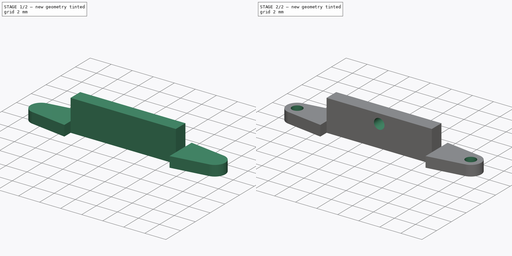
[diagram: build sequence overview — one tinted view per stage of 2, left to right]
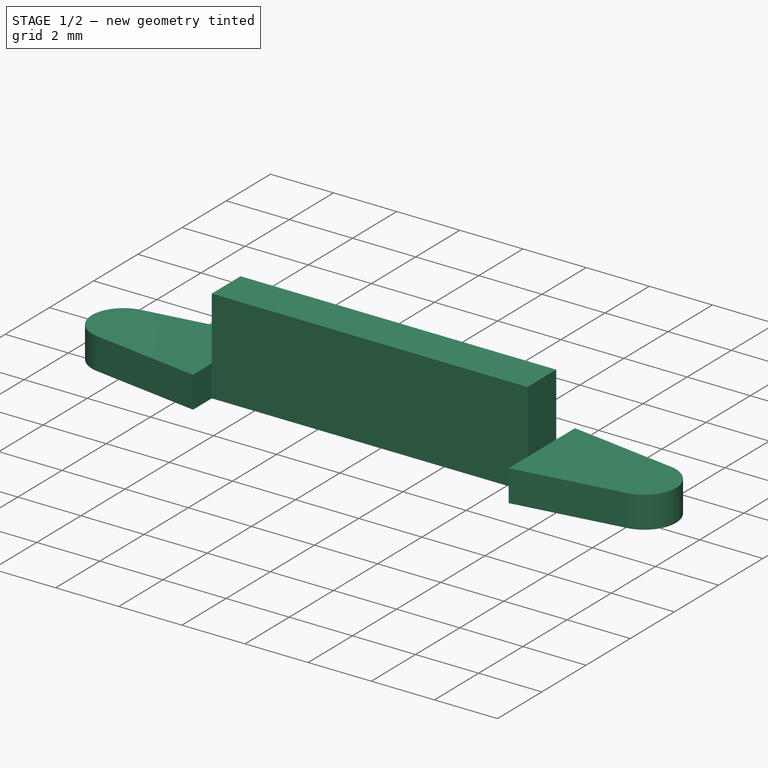
[diagram: stage 1 of 2 — iso view after this stage's code; geometry added in this stage tinted green]
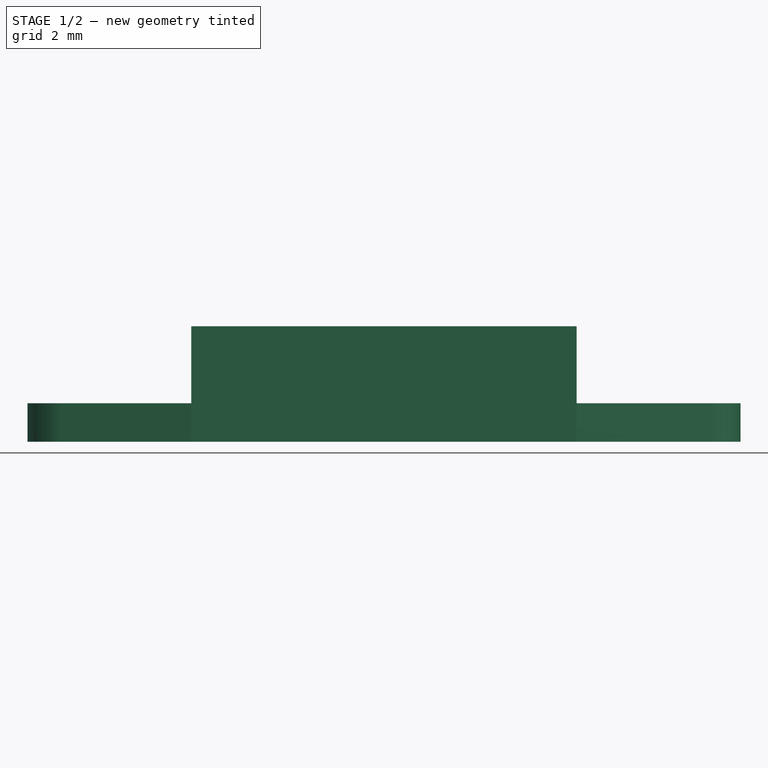
[diagram: stage 1 of 2 — front view after this stage's code; geometry added in this stage tinted green]
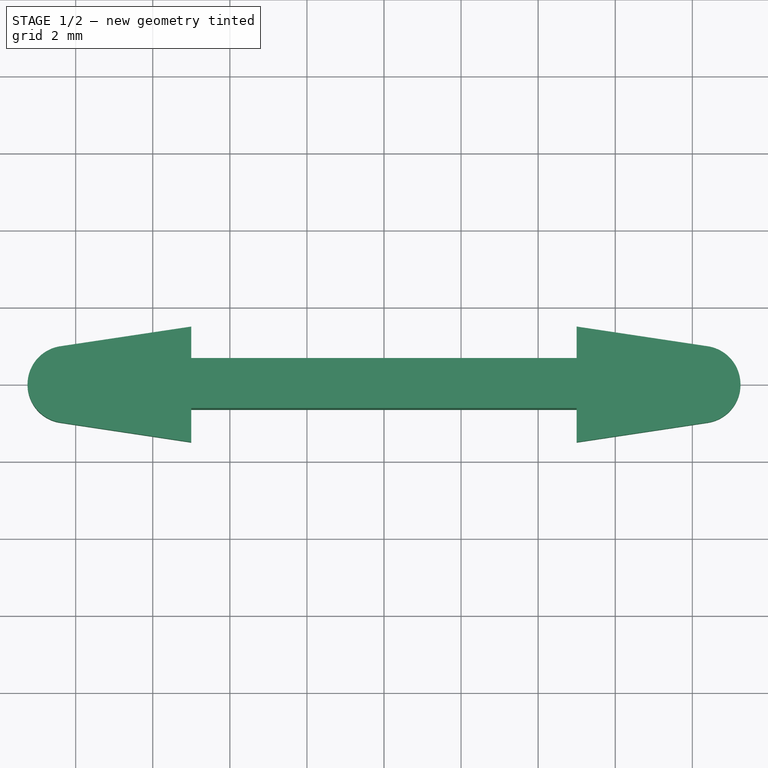
[diagram: stage 1 of 2 — top view after this stage's code; geometry added in this stage tinted green]
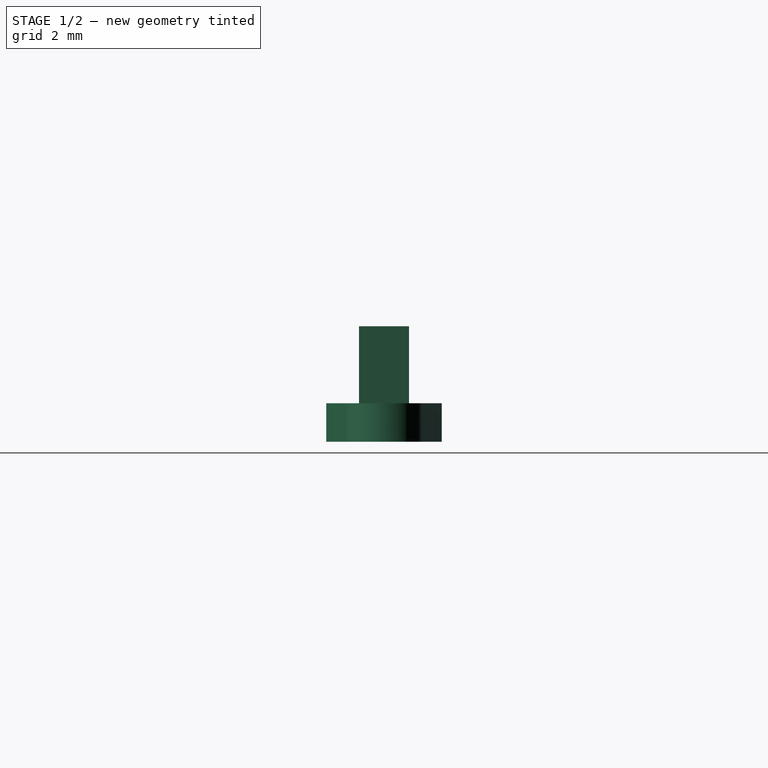
[diagram: stage 1 of 2 — right view after this stage's code; geometry added in this stage tinted green]
FCSTD DOCUMENT  (FreeCAD 0.16R6264 (Git))
Label: Dir_C
License: All rights reserved
LicenseURL: http://en.wikipedia.org/wiki/All_rights_reserved
objects: Sketcher::SketchObject×4, PartDesign::Pad×2, PartDesign::Pocket×2
note: 12 computed .brp shape members not serialized (recipe doc carries the construction recipe); baked Part::Feature solids carry a one-line shape summary decoded from their .brp

FEATURE [Sketcher::SketchObject] Sketch
  sketch-geometry (12):
    g0: ArcOfCircle CenterX=-8.25 CenterY=0 CenterZ=0 NormalX=0 NormalY=0 NormalZ=1 Radius=1 StartAngle=1.72006 EndAngle=4.56312
    g1: ArcOfCircle CenterX=8.25 CenterY=0 CenterZ=0 NormalX=0 NormalY=0 NormalZ=1 Radius=1 StartAngle=4.86166 EndAngle=7.70471
    g2: LineSegment StartX=-8.39871 StartY=0.98888 StartZ=0 EndX=-5 EndY=1.5 EndZ=0
    g3: LineSegment StartX=-5 StartY=1.5 StartZ=0 EndX=-5 EndY=0.65 EndZ=0
    g4: LineSegment StartX=-5 StartY=0.65 StartZ=0 EndX=5 EndY=0.65 EndZ=0
    g5: LineSegment StartX=5 StartY=0.65 StartZ=0 EndX=5 EndY=1.5 EndZ=0
    g6: LineSegment StartX=5 StartY=1.5 StartZ=0 EndX=8.39871 EndY=0.98888 EndZ=0
    g7: LineSegment StartX=-8.39871 StartY=-0.98888 StartZ=0 EndX=-5 EndY=-1.5 EndZ=0
    g8: LineSegment StartX=-5 StartY=-1.5 StartZ=0 EndX=-5 EndY=-0.65 EndZ=0
    g9: LineSegment StartX=-5 StartY=-0.65 StartZ=0 EndX=5 EndY=-0.65 EndZ=0
    g10: LineSegment StartX=5 StartY=-0.65 StartZ=0 EndX=5 EndY=-1.5 EndZ=0
    g11: LineSegment StartX=5 StartY=-1.5 StartZ=0 EndX=8.39871 EndY=-0.98888 EndZ=0
  constraints (36):
    c: PointOnObject(g1,g-1)
    c: PointOnObject(g0,g-1)
    c: Coincident(g2,g3)
    c: Vertical(g3)
    c: Coincident(g3,g4)
    c: Horizontal(g4)
    c: Coincident(g4,g5)
    c: Vertical(g5)
    c: Coincident(g5,g6)
    c: Coincident(g7,g8)
    c: Vertical(g8)
    c: Coincident(g8,g9)
    c: Horizontal(g9)
    c: Coincident(g9,g10)
    c: Vertical(g10)
    c: Coincident(g10,g11)
    c: Tangent(g1,g11) = -1.5708
    c: Tangent(g1,g6) = 1.5708
    c: Tangent(g0,g2) = 1.5708
    c: Tangent(g0,g7) = -1.5708
    c: Radius(g0) = 1
    c: Equal(g1,g0)
    c: DistanceX(g2,g5) = 10
    c: Equal(g9,g4)
    c: DistanceY(g4,g9) = -1.3
    c: DistanceY(g4) = 0.65
    c: Equal(g5,g3)
    c: Equal(g3,g8)
    c: Equal(g8,g10)
    c: DistanceY(g5) = 1.5
    c: DistanceX(g1,g0) = -16.5
    c: DistanceX(g1) = 8.25
    c: Equal(g11,g6)
    c: Equal(g2,g7)
    c: Equal(g7,g11)
    c: Equal(g11,g6)
FEATURE [PartDesign::Pad] Pad
  Length = 1
  Length2 = 100
  Sketch = -> Sketch
  Type = 0
FEATURE [Sketcher::SketchObject] Sketch001
  Placement = pos=(0,0,1) rot=(0,0,1;0rad)
  Support = -> Pad [Face14]
  sketch-geometry (4):
    g0: LineSegment StartX=-5 StartY=0.65 StartZ=0 EndX=5 EndY=0.65 EndZ=0
    g1: LineSegment StartX=5 StartY=0.65 StartZ=0 EndX=5 EndY=-0.65 EndZ=0
    g2: LineSegment StartX=5 StartY=-0.65 StartZ=0 EndX=-5 EndY=-0.65 EndZ=0
    g3: LineSegment StartX=-5 StartY=-0.65 StartZ=0 EndX=-5 EndY=0.65 EndZ=0
  constraints (12):
    c: Coincident(g0,g1)
    c: Coincident(g1,g2)
    c: Coincident(g2,g3)
    c: Coincident(g3,g0)
    c: Horizontal(g0)
    c: Horizontal(g2)
    c: Vertical(g1)
    c: Vertical(g3)
    c: DistanceY(g1) = -1.3
    c: DistanceY(g0) = 0.65
    c: DistanceX(g0) = 10
    c: DistanceX(g0) = 5
FEATURE [PartDesign::Pad] Pad001
  Length = 2
  Length2 = 100
  Sketch = -> Sketch001
  Type = 0
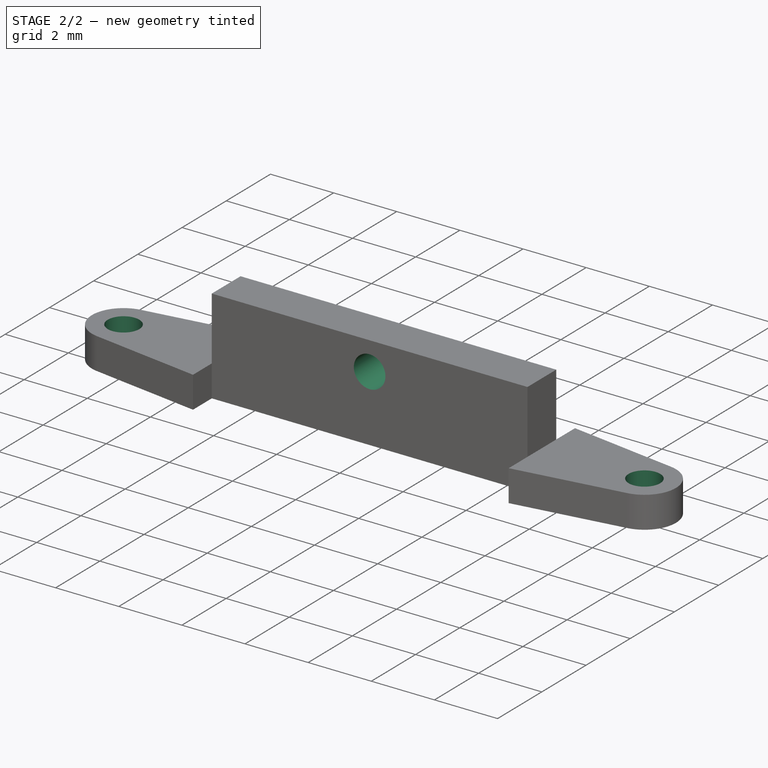
[diagram: stage 2 of 2 — iso view after this stage's code; geometry added in this stage tinted green]
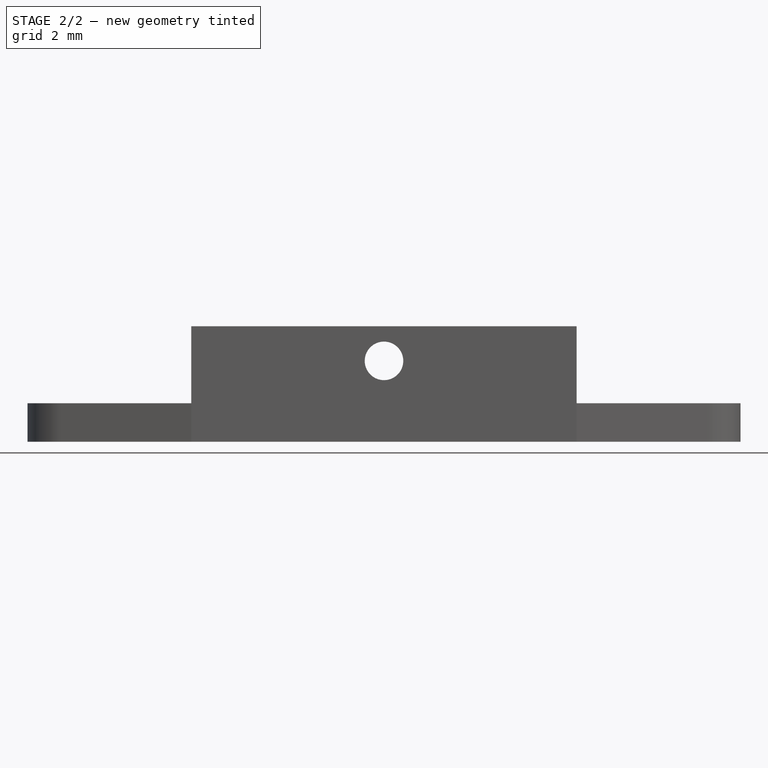
[diagram: stage 2 of 2 — front view after this stage's code; geometry added in this stage tinted green]
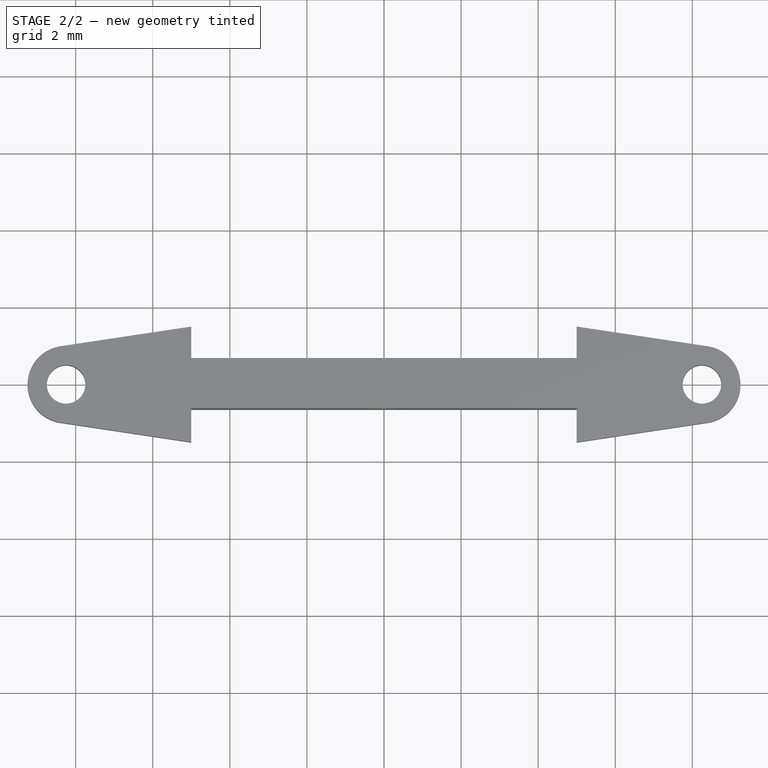
[diagram: stage 2 of 2 — top view after this stage's code; geometry added in this stage tinted green]
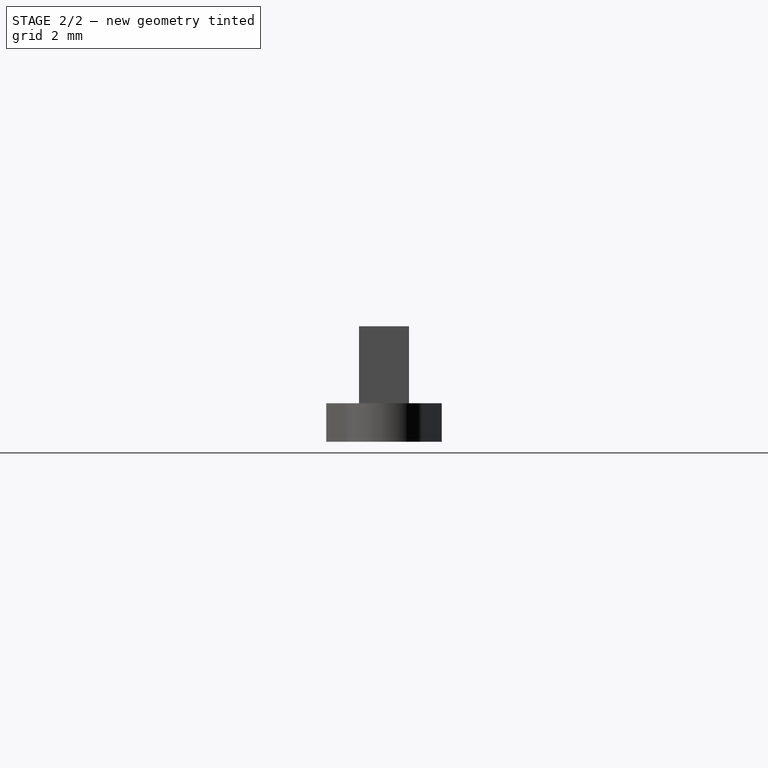
[diagram: stage 2 of 2 — right view after this stage's code; geometry added in this stage tinted green]
FEATURE [Sketcher::SketchObject] Sketch002
  Placement = pos=(0,-0.65,0) rot=(1,0,0;1.5708rad)
  Support = -> Pad001 [Face17]
  sketch-geometry (1):
    g0: Circle CenterX=0 CenterY=2.1 CenterZ=0 NormalX=0 NormalY=0 NormalZ=1 Radius=0.5
  constraints (3):
    c: PointOnObject(g0,g-2)
    c: Radius(g0) = 0.5
    c: DistanceY(g0) = 2.1
FEATURE [PartDesign::Pocket] Pocket
  Length = 1.3
  Sketch = -> Sketch002
  Type = 0
FEATURE [Sketcher::SketchObject] Sketch003
  Placement = pos=(0,0,1) rot=(0,0,1;0rad)
  Support = -> Pocket [Face5]
  sketch-geometry (2):
    g0: Circle CenterX=-8.25 CenterY=0 CenterZ=0 NormalX=0 NormalY=0 NormalZ=1 Radius=0.5
    g1: Circle CenterX=8.25 CenterY=0 CenterZ=0 NormalX=0 NormalY=0 NormalZ=1 Radius=0.5
  constraints (6):
    c: PointOnObject(g0,g-1)
    c: PointOnObject(g1,g-1)
    c: DistanceX(g1,g0) = -16.5
    c: DistanceX(g1) = 8.25
    c: Radius(g1) = 0.5
    c: Equal(g1,g0)
FEATURE [PartDesign::Pocket] Pocket001
  Length = 1
  Sketch = -> Sketch003
  Type = 0
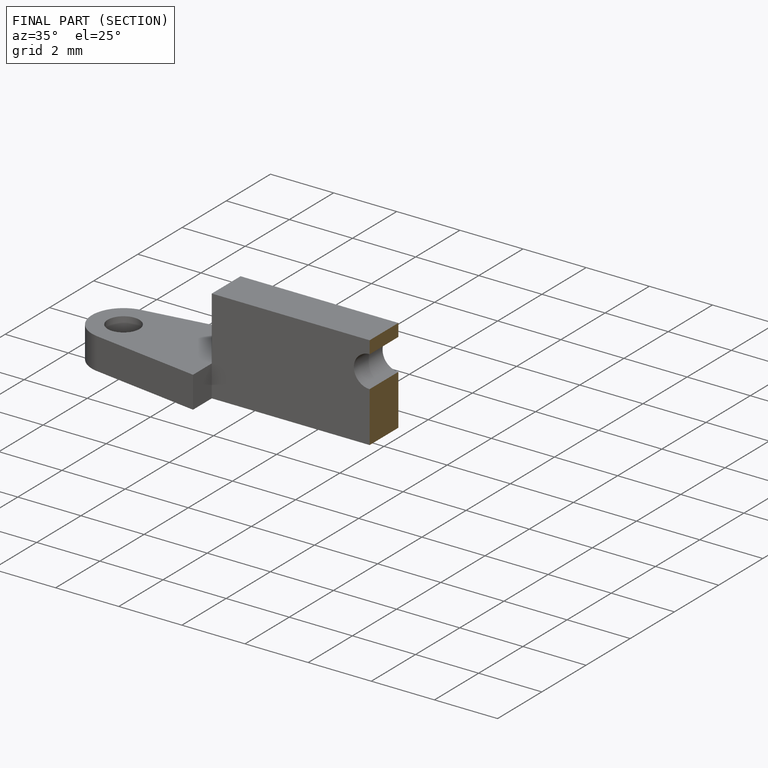
[diagram: finished part — half-section view (interior)]
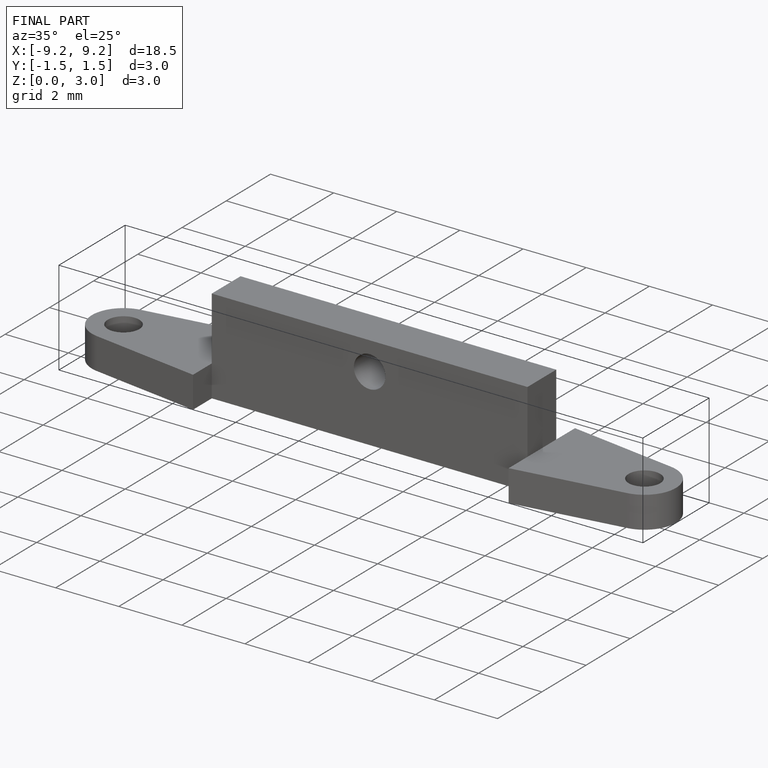
[diagram: finished part — iso view with bounding-box wireframe]
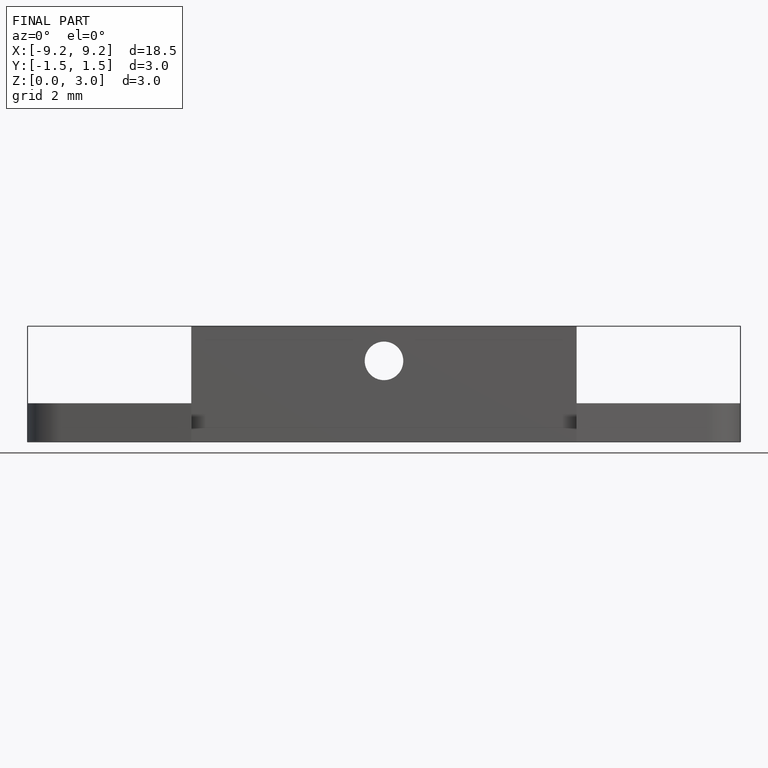
[diagram: finished part — front view with bounding-box wireframe]
